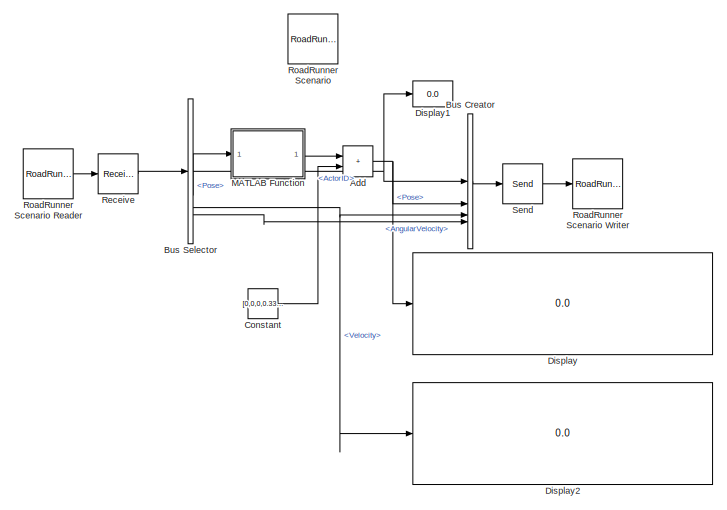
[diagram: root canvas - part 1/2, top left region]
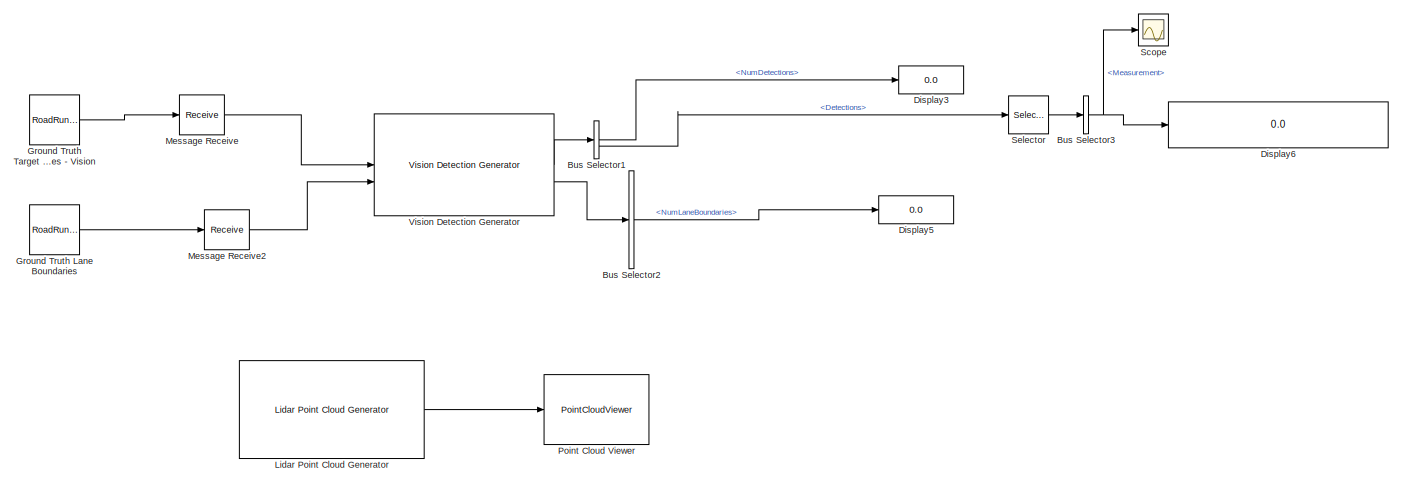
[diagram: root canvas - part 2/2, full width, bottom band]
MODEL slx_011c54589eb5
KIND model
CONFIG AbsTol = auto
CONFIG EnableMultiTasking = off
CONFIG FixedStep = auto
CONFIG MaxStep = auto
CONFIG MinStep = auto
CONFIG RelTol = 1e-3
CONFIG SampleTimeConstraint = Unconstrained
CONFIG SolverName = VariableStepAuto
CONFIG StartTime = 0
CONFIG StopTime = 1000
BLOCK [Sum] Add
  IconShape = rectangular
BLOCK [BusCreator] Bus Creator
  DisplayOption = bar
  InheritFromInputs = on
  Inputs = 4
  NonVirtualBus = on
  OutDataTypeStr = Bus: BusActorRuntime
BLOCK [BusSelector] Bus Selector
  OutputSignals = ActorID,Pose,Velocity,AngularVelocity
BLOCK [BusSelector] Bus Selector1
  OutputSignals = NumDetections,Detections
BLOCK [BusSelector] Bus Selector2
  OutputSignals = NumLaneBoundaries
BLOCK [BusSelector] Bus Selector3
  OutputSignals = Measurement
BLOCK [Constant] Constant
  SampleTime = simStepSize
  Value = [0,0,0,0.33;0,0,0,0;0,0,0,0;0,0,0,0]
BLOCK [Display] Display
  Decimation = 1
BLOCK [Display] Display1
  Decimation = 1
BLOCK [Display] Display2
  Decimation = 1
BLOCK [Display] Display3
  Decimation = 1
BLOCK [Display] Display5
  Decimation = 1
BLOCK [Display] Display6
  Decimation = 1
BLOCK [Reference] Ground Truth Lane Boundaries  REF=roadrunnerscenario/RoadRunner Scenario
Reader
  SourceBlock = roadrunnerscenario/RoadRunner Scenario\nReader
BLOCK [Reference] Ground Truth Target Poses - Vision  REF=roadrunnerscenario/RoadRunner Scenario
Reader
  SourceBlock = roadrunnerscenario/RoadRunner Scenario\nReader
BLOCK [Reference] Lidar Point Cloud Generator  REF=drivingscenarioandsensors/Lidar Point Cloud Generator
  SourceBlock = drivingscenarioandsensors/Lidar Point Cloud Generator
  SourceType = lidarPointCloudGenerator
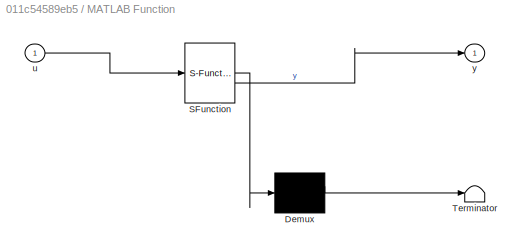
BLOCK [SubSystem] MATLAB Function
  ErrorFcn = Stateflow.Translate.translate
  PermitHierarchicalResolution = ExplicitOnly
  SFBlockType = MATLAB Function
  TreatAsAtomicUnit = on
BLOCK [Demux] MATLAB Function/ Demux 
  Outputs = 1
BLOCK [S-Function] MATLAB Function/ SFunction 
  EnableBusSupport = on
  FunctionName = sf_sfun
  PortCounts = [1 2]
  SFcnIsStateOwnerBlock = off
  SFunctionDeploymentMode = off
  Tag = Stateflow S-Function 2
BLOCK [Terminator] MATLAB Function/ Terminator 
BLOCK [Inport] MATLAB Function/u
BLOCK [Outport] MATLAB Function/y
BLOCK [Receive] Message Receive
  InputPortMap = u0
  InputPortMessageModes = m
  OutputPortMap = o1
  SampleTime = simStepSize
  UseInternalQueue = off
BLOCK [Receive] Message Receive2
  InputPortMap = u0
  InputPortMessageModes = m
  OutputPortMap = o1
  SampleTime = simStepSize
  UseInternalQueue = off
BLOCK [PointCloudViewer] Point Cloud Viewer
  FigPos = [774.6 805.2 766.4 154.4]
  ScopeSpecificationString = vipscopes.PointCloudViewerScopeCfg('CurrentConfiguration', extmgr.ConfigurationSet(extmgr.Configuration('Core','General UI',true),extmgr.Configuration('Core','Source UI',true),extmgr.Configuration('Sources','WiredSimulink',true),extmgr.Configuration('Visuals','Point Cloud',true)),'Version','2024a','Position',[774.6 57.8 766.4 154.4],'VisibleAtModelOpen','on')
BLOCK [Receive] Receive
  InputPortMap = u0
  InputPortMessageModes = m
  OutputPortMap = o1
  QueueLength = 1
  QueueOverwriting = on
  QueueType = LIFO
  UseInternalQueue = off
BLOCK [Reference] RoadRunner Scenario  REF=roadrunnerscenario/RoadRunner Scenario
  SourceBlock = roadrunnerscenario/RoadRunner Scenario
BLOCK [Reference] RoadRunner Scenario Reader  REF=roadrunnerscenario/RoadRunner Scenario
Reader
  SourceBlock = roadrunnerscenario/RoadRunner Scenario\nReader
BLOCK [Reference] RoadRunner Scenario Writer  REF=roadrunnerscenario/RoadRunner Scenario
Writer
  SourceBlock = roadrunnerscenario/RoadRunner Scenario\nWriter
BLOCK [Scope] Scope
  Floating = off
  NumInputPorts = 1
  ScopeSpecificationString = Simulink.scopes.TimeScopeBlockCfg('CurrentConfiguration', extmgr.ConfigurationSet(extmgr.Configuration('Core','General UI',true),extmgr.Configuration('Core','Source UI',true),extmgr.Configuration('Sources','WiredSimulink',true),extmgr.Configuration('Visuals','Time Domain',true,'SerializedDisplays',{struct('MinYLimReal','-149.05006','MaxYLimReal','124.73647','YLabelReal','','MinYLimMag',' 0.00000',...<+1580ch>
BLOCK [Selector] Selector
  IndexOptions = Index vector (dialog)
  Indices = [1]
  InputPortWidth = 50
  OutputSizes = 1
BLOCK [Send] Send
  InputPortMap = u1
  OutputPortMessageModes = m
BLOCK [Reference] Vision Detection Generator  REF=drivingscenarioandsensors/Vision Detection Generator
  SourceBlock = drivingscenarioandsensors/Vision Detection Generator
  SourceType = visionDetectionGenerator
NET Add:1 -> Bus Creator:2, Display:1
LINE Bus Creator:1 -> Send:1
LINE Bus Selector1:1 -> Display3:1
LINE Bus Selector1:2 -> Selector:1
LINE Bus Selector2:1 -> Display5:1
NET Bus Selector3:1 -> Display6:1, Scope:1
NET Bus Selector:1 -> Bus Creator:1, Display1:1
LINE Bus Selector:2 -> MATLAB Function:1
NET Bus Selector:3 -> Bus Creator:3, Display2:1
LINE Bus Selector:4 -> Bus Creator:4
LINE Constant:1 -> Add:2
LINE Ground Truth Lane Boundaries:1 -> Message Receive2:1
LINE Ground Truth Target Poses - Vision:1 -> Message Receive:1
LINE Lidar Point Cloud Generator:1 -> Point Cloud Viewer:1
LINE MATLAB Function:1 -> Add:1
LINE Message Receive2:1 -> Vision Detection Generator:2
LINE Message Receive:1 -> Vision Detection Generator:1
LINE Receive:1 -> Bus Selector:1
LINE RoadRunner Scenario Reader:1 -> Receive:1
LINE Selector:1 -> Bus Selector3:1
LINE Send:1 -> RoadRunner Scenario Writer:1
LINE Vision Detection Generator:1 -> Bus Selector1:1
LINE Vision Detection Generator:2 -> Bus Selector2:1
note: NET lines group one-source signal fan-out (src -> all destinations, sorted); 1:1 wires keep LINE
CHART MATLAB Function states=1 transitions=1
  STATE_LABEL 'eML_blk_kernel()'
  STATE_LABEL 'SCRIPT:\nfunction y = fcn(u)\nu(2,4) = -11 \ny = u;\n'
CHART  states=0 transitions=0
